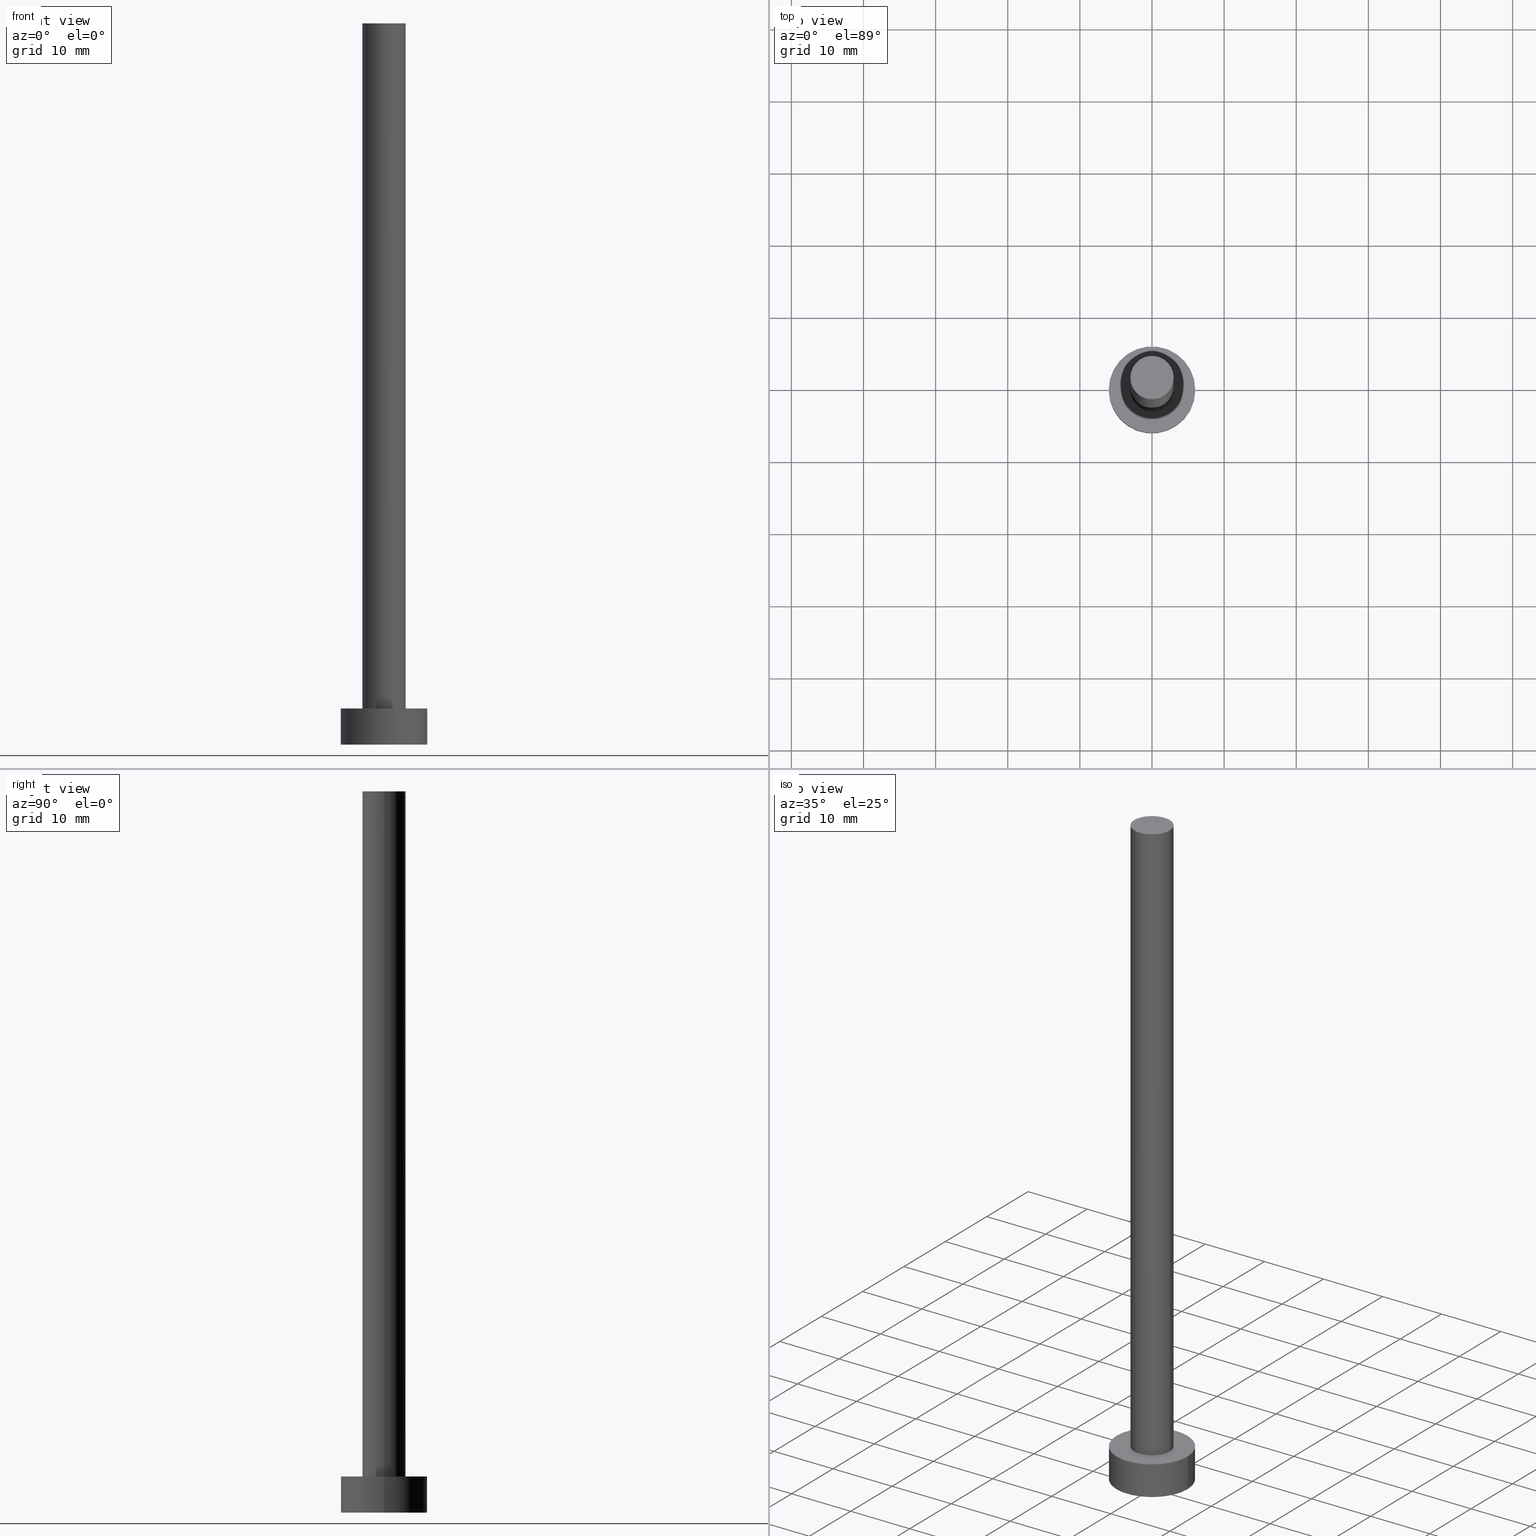
[diagram: canonical four-view strip — front | top / right | iso, engineering-drawing reading convention]
A machine part, canonical four-view strip (front | top / right | iso — engineering-drawing reading convention). The complete STEP part file that produces these views, byte-faithful:
ISO-10303-21;
HEADER;
FILE_DESCRIPTION (( 'STEP AP203' ),
    '1' );
FILE_NAME ('e6b4.STEP',
    '2023-02-12T11:41:01',
    ( '' ),
    ( '' ),
    'SwSTEP 2.0',
    'SolidWorks 2019',
    '' );
FILE_SCHEMA (( 'CONFIG_CONTROL_DESIGN' ));
ENDSEC;

DATA;
#1 = APPLICATION_PROTOCOL_DEFINITION ( 'international standard', 'config_control_design', 1994, #138 ) ;
#2 = DIRECTION ( 'NONE',  ( 0.000000000000000000, 0.000000000000000000, 1.000000000000000000 ) ) ;
#3 = APPLICATION_PROTOCOL_DEFINITION ( 'international standard', 'config_control_design', 1994, #40 ) ;
#4 = DIRECTION ( 'NONE',  ( 1.000000000000000000, 0.000000000000000000, 0.000000000000000000 ) ) ;
#5 = DATE_AND_TIME ( #47, #208 ) ;
#6 = CARTESIAN_POINT ( 'NONE',  ( 0.000000000000000000, 0.000000000000000000, 5.000000000000000000 ) ) ;
#7 = COORDINATED_UNIVERSAL_TIME_OFFSET ( 1, 0, .AHEAD. ) ;
#8 = DIRECTION ( 'NONE',  ( 0.000000000000000000, 0.000000000000000000, 1.000000000000000000 ) ) ;
#9 = APPROVAL_STATUS ( 'not_yet_approved' ) ;
#10 = LOCAL_TIME ( 12, 41, 1.000000000000000000, #201 ) ;
#11 = APPROVAL_ROLE ( '' ) ;
#12 = CARTESIAN_POINT ( 'NONE',  ( 0.000000000000000000, 0.000000000000000000, 0.000000000000000000 ) ) ;
#13 = ORIENTED_EDGE ( 'NONE', *, *, #91, .T. ) ;
#14 = CARTESIAN_POINT ( 'NONE',  ( 0.000000000000000000, 0.000000000000000000, 100.0000000000000000 ) ) ;
#15 = DIRECTION ( 'NONE',  ( -0.000000000000000000, -0.000000000000000000, -1.000000000000000000 ) ) ;
#16 = CARTESIAN_POINT ( 'NONE',  ( 6.000000000000000888, 7.347880794884120722E-16, 5.000000000000000000 ) ) ;
#17 = CC_DESIGN_PERSON_AND_ORGANIZATION_ASSIGNMENT ( #237, #68, ( #45 ) ) ;
#18 = CARTESIAN_POINT ( 'NONE',  ( 3.000000000000000444, 3.673940397442060361E-16, 100.0000000000000000 ) ) ;
#19 = PLANE ( 'NONE',  #28 ) ;
#20 = VERTEX_POINT ( 'NONE', #151 ) ;
#21 = CARTESIAN_POINT ( 'NONE',  ( -3.000000000000000444, 0.000000000000000000, 100.0000000000000000 ) ) ;
#22 = APPROVAL ( #241, 'NEUR�EN�' ) ;
#23 = AXIS2_PLACEMENT_3D ( 'NONE', #214, #90, #235 ) ;
#24 = DATE_AND_TIME ( #167, #110 ) ;
#25 = CIRCLE ( 'NONE', #146, 3.000000000000000444 ) ;
#26 = ADVANCED_FACE ( 'NONE', ( #39 ), #225, .T. ) ;
#27 = FACE_BOUND ( 'NONE', #55, .T. ) ;
#28 = AXIS2_PLACEMENT_3D ( 'NONE', #168, #189, #41 ) ;
#29 = CARTESIAN_POINT ( 'NONE',  ( 0.000000000000000000, 0.000000000000000000, 0.000000000000000000 ) ) ;
#30 = SECURITY_CLASSIFICATION_LEVEL ( 'unclassified' ) ;
#31 = DATE_AND_TIME ( #131, #216 ) ;
#32 = FACE_OUTER_BOUND ( 'NONE', #83, .T. ) ;
#33 = VERTEX_POINT ( 'NONE', #35 ) ;
#34 = DIRECTION ( 'NONE',  ( -1.000000000000000000, 0.000000000000000000, 0.000000000000000000 ) ) ;
#35 = CARTESIAN_POINT ( 'NONE',  ( 6.000000000000000888, 7.347880794884120722E-16, 5.000000000000000000 ) ) ;
#36 = CARTESIAN_POINT ( 'NONE',  ( 6.000000000000000888, 7.347880794884120722E-16, 0.000000000000000000 ) ) ;
#37 = VERTEX_POINT ( 'NONE', #18 ) ;
#38 =( LENGTH_UNIT ( ) NAMED_UNIT ( * ) SI_UNIT ( .MILLI., .METRE. ) );
#39 = FACE_OUTER_BOUND ( 'NONE', #119, .T. ) ;
#40 = APPLICATION_CONTEXT ( 'configuration controlled 3d designs of mechanical parts and assemblies' ) ;
#41 = DIRECTION ( 'NONE',  ( 1.000000000000000000, 0.000000000000000000, -0.000000000000000000 ) ) ;
#42 = EDGE_CURVE ( 'NONE', #122, #113, #100, .T. ) ;
#43 = CIRCLE ( 'NONE', #179, 3.000000000000000444 ) ;
#44 = EDGE_CURVE ( 'NONE', #188, #33, #125, .T. ) ;
#45 = PRODUCT_DEFINITION_FORMATION_WITH_SPECIFIED_SOURCE ( 'LIBOVOLN�', '', #121, .NOT_KNOWN. ) ;
#46 = DIRECTION ( 'NONE',  ( -1.000000000000000000, 0.000000000000000000, 0.000000000000000000 ) ) ;
#47 = CALENDAR_DATE ( 2023, 12, 2 ) ;
#48 = AXIS2_PLACEMENT_3D ( 'NONE', #62, #2, #88 ) ;
#49 = COORDINATED_UNIVERSAL_TIME_OFFSET ( 1, 0, .AHEAD. ) ;
#50 = AXIS2_PLACEMENT_3D ( 'NONE', #29, #163, #240 ) ;
#51 = DATE_AND_TIME ( #218, #194 ) ;
#52 = DIRECTION ( 'NONE',  ( 1.000000000000000000, 0.000000000000000000, 0.000000000000000000 ) ) ;
#53 = CARTESIAN_POINT ( 'NONE',  ( 0.000000000000000000, 0.000000000000000000, 5.000000000000000000 ) ) ;
#54 = CC_DESIGN_PERSON_AND_ORGANIZATION_ASSIGNMENT ( #239, #164, ( #82 ) ) ;
#55 = EDGE_LOOP ( 'NONE', ( #60, #158 ) ) ;
#56 = DIRECTION ( 'NONE',  ( -1.000000000000000000, 0.000000000000000000, 0.000000000000000000 ) ) ;
#57 = ORIENTED_EDGE ( 'NONE', *, *, #44, .F. ) ;
#58 = LINE ( 'NONE', #246, #169 ) ;
#59 = EDGE_CURVE ( 'NONE', #20, #113, #242, .T. ) ;
#60 = ORIENTED_EDGE ( 'NONE', *, *, #233, .F. ) ;
#61 = ORIENTED_EDGE ( 'NONE', *, *, #124, .F. ) ;
#62 = CARTESIAN_POINT ( 'NONE',  ( 0.000000000000000000, 0.000000000000000000, 0.000000000000000000 ) ) ;
#63 = PRODUCT_DEFINITION ( 'NEZN�M�', '', #45, #175 ) ;
#64 = PERSON_AND_ORGANIZATION ( #133, #252 ) ;
#65 = FACE_OUTER_BOUND ( 'NONE', #136, .T. ) ;
#66 = APPROVAL_ROLE ( '' ) ;
#67 = APPROVAL ( #9, 'NEUR�EN�' ) ;
#68 = PERSON_AND_ORGANIZATION_ROLE ( 'creator' ) ;
#69 = DIRECTION ( 'NONE',  ( 0.000000000000000000, 0.000000000000000000, 1.000000000000000000 ) ) ;
#70 = DIRECTION ( 'NONE',  ( -0.000000000000000000, -0.000000000000000000, -1.000000000000000000 ) ) ;
#71 = CLOSED_SHELL ( 'NONE', ( #145, #244, #26, #87, #186, #75, #166 ) ) ;
#72 = LINE ( 'NONE', #200, #152 ) ;
#73 = UNCERTAINTY_MEASURE_WITH_UNIT (LENGTH_MEASURE( 1.000000000000000082E-05 ), #38, 'distance_accuracy_value', 'NONE');
#74 = PLANE ( 'NONE',  #116 ) ;
#75 = ADVANCED_FACE ( 'NONE', ( #65 ), #127, .T. ) ;
#76 = ORIENTED_EDGE ( 'NONE', *, *, #197, .F. ) ;
#77 = MANIFOLD_SOLID_BREP ( 'P�idat vysunut�m3', #71 ) ;
#78 = ORIENTED_EDGE ( 'NONE', *, *, #126, .T. ) ;
#79 = DIRECTION ( 'NONE',  ( 0.000000000000000000, 0.000000000000000000, 1.000000000000000000 ) ) ;
#80 = CARTESIAN_POINT ( 'NONE',  ( 0.000000000000000000, 0.000000000000000000, 5.000000000000000000 ) ) ;
#81 = EDGE_CURVE ( 'NONE', #33, #188, #215, .T. ) ;
#82 = SECURITY_CLASSIFICATION ( '', '', #30 ) ;
#83 = EDGE_LOOP ( 'NONE', ( #137, #210 ) ) ;
#84 = EDGE_LOOP ( 'NONE', ( #61, #140, #103, #190 ) ) ;
#85 = CC_DESIGN_APPROVAL ( #22, ( #82 ) ) ;
#86 = DIRECTION ( 'NONE',  ( 0.000000000000000000, 0.000000000000000000, 1.000000000000000000 ) ) ;
#87 = ADVANCED_FACE ( 'NONE', ( #27, #178 ), #132, .T. ) ;
#88 = DIRECTION ( 'NONE',  ( 1.000000000000000000, 0.000000000000000000, 0.000000000000000000 ) ) ;
#89 = APPROVAL_DATE_TIME ( #24, #22 ) ;
#90 = DIRECTION ( 'NONE',  ( 0.000000000000000000, 0.000000000000000000, 1.000000000000000000 ) ) ;
#91 = EDGE_CURVE ( 'NONE', #188, #118, #72, .T. ) ;
#92 = PERSON_AND_ORGANIZATION_ROLE ( 'creator' ) ;
#93 = CARTESIAN_POINT ( 'NONE',  ( 0.000000000000000000, 0.000000000000000000, 100.0000000000000000 ) ) ;
#94 = DIRECTION ( 'NONE',  ( 0.000000000000000000, 0.000000000000000000, 1.000000000000000000 ) ) ;
#95 = COORDINATED_UNIVERSAL_TIME_OFFSET ( 1, 0, .AHEAD. ) ;
#96 = VECTOR ( 'NONE', #102, 1000.000000000000000 ) ;
#97 = DIRECTION ( 'NONE',  ( 0.000000000000000000, 0.000000000000000000, 1.000000000000000000 ) ) ;
#98 = ORIENTED_EDGE ( 'NONE', *, *, #108, .T. ) ;
#99 = CIRCLE ( 'NONE', #232, 6.000000000000000888 ) ;
#100 = LINE ( 'NONE', #171, #96 ) ;
#101 = EDGE_CURVE ( 'NONE', #172, #118, #99, .T. ) ;
#102 = DIRECTION ( 'NONE',  ( -0.000000000000000000, -0.000000000000000000, -1.000000000000000000 ) ) ;
#103 = ORIENTED_EDGE ( 'NONE', *, *, #59, .T. ) ;
#104 = EDGE_CURVE ( 'NONE', #122, #37, #43, .T. ) ;
#105 = AXIS2_PLACEMENT_3D ( 'NONE', #53, #15, #206 ) ;
#106 = DIRECTION ( 'NONE',  ( -0.000000000000000000, -0.000000000000000000, -1.000000000000000000 ) ) ;
#107 = PERSON_AND_ORGANIZATION ( #133, #252 ) ;
#108 = EDGE_CURVE ( 'NONE', #118, #172, #159, .T. ) ;
#109 = DATE_TIME_ROLE ( 'classification_date' ) ;
#110 = LOCAL_TIME ( 12, 41, 1.000000000000000000, #95 ) ;
#111 = CC_DESIGN_PERSON_AND_ORGANIZATION_ASSIGNMENT ( #107, #92, ( #63 ) ) ;
#112 = DIRECTION ( 'NONE',  ( 0.000000000000000000, 0.000000000000000000, 1.000000000000000000 ) ) ;
#113 = VERTEX_POINT ( 'NONE', #147 ) ;
#114 = DIRECTION ( 'NONE',  ( 1.000000000000000000, 0.000000000000000000, -0.000000000000000000 ) ) ;
#115 = ORIENTED_EDGE ( 'NONE', *, *, #101, .T. ) ;
#116 = AXIS2_PLACEMENT_3D ( 'NONE', #247, #97, #114 ) ;
#117 = FACE_OUTER_BOUND ( 'NONE', #185, .T. ) ;
#118 = VERTEX_POINT ( 'NONE', #221 ) ;
#119 = EDGE_LOOP ( 'NONE', ( #211, #57, #13, #98 ) ) ;
#120 = LINE ( 'NONE', #16, #155 ) ;
#121 = PRODUCT ( 'e6b4', 'e6b4', '', ( #143 ) ) ;
#122 = VERTEX_POINT ( 'NONE', #21 ) ;
#123 = AXIS2_PLACEMENT_3D ( 'NONE', #135, #226, #56 ) ;
#124 = EDGE_CURVE ( 'NONE', #37, #122, #25, .T. ) ;
#125 = CIRCLE ( 'NONE', #219, 6.000000000000000888 ) ;
#126 = EDGE_CURVE ( 'NONE', #33, #172, #120, .T. ) ;
#127 = CYLINDRICAL_SURFACE ( 'NONE', #202, 3.000000000000000444 ) ;
#128 = CALENDAR_DATE ( 2023, 12, 2 ) ;
#129 = CIRCLE ( 'NONE', #165, 3.000000000000000444 ) ;
#130 = APPROVAL_DATE_TIME ( #5, #191 ) ;
#131 = CALENDAR_DATE ( 2023, 12, 2 ) ;
#132 = PLANE ( 'NONE',  #255 ) ;
#133 = PERSON ( 'NEUR�EN�', 'NEUR�EN�', 'NEUR�EN�', ('NEUR�EN�'), ('NEUR�EN�'), ('NEUR�EN�') ) ;
#134 = CARTESIAN_POINT ( 'NONE',  ( 0.000000000000000000, 0.000000000000000000, 100.0000000000000000 ) ) ;
#135 = CARTESIAN_POINT ( 'NONE',  ( 0.000000000000000000, 0.000000000000000000, 5.000000000000000000 ) ) ;
#136 = EDGE_LOOP ( 'NONE', ( #76, #230, #139, #170 ) ) ;
#137 = ORIENTED_EDGE ( 'NONE', *, *, #104, .T. ) ;
#138 = APPLICATION_CONTEXT ( 'configuration controlled 3d designs of mechanical parts and assemblies' ) ;
#139 = ORIENTED_EDGE ( 'NONE', *, *, #42, .T. ) ;
#140 = ORIENTED_EDGE ( 'NONE', *, *, #197, .T. ) ;
#141 = EDGE_LOOP ( 'NONE', ( #253, #78, #115, #173 ) ) ;
#142 = CC_DESIGN_PERSON_AND_ORGANIZATION_ASSIGNMENT ( #199, #162, ( #45 ) ) ;
#143 = MECHANICAL_CONTEXT ( 'NONE', #138, 'mechanical' ) ;
#144 = DIRECTION ( 'NONE',  ( 1.000000000000000000, 0.000000000000000000, 0.000000000000000000 ) ) ;
#145 = ADVANCED_FACE ( 'NONE', ( #207 ), #150, .T. ) ;
#146 = AXIS2_PLACEMENT_3D ( 'NONE', #14, #112, #187 ) ;
#147 = CARTESIAN_POINT ( 'NONE',  ( -3.000000000000000444, 0.000000000000000000, 5.000000000000000000 ) ) ;
#148 = CC_DESIGN_DATE_AND_TIME_ASSIGNMENT ( #31, #109, ( #82 ) ) ;
#149 = DIRECTION ( 'NONE',  ( -0.000000000000000000, -0.000000000000000000, -1.000000000000000000 ) ) ;
#150 = CYLINDRICAL_SURFACE ( 'NONE', #205, 3.000000000000000444 ) ;
#151 = CARTESIAN_POINT ( 'NONE',  ( 3.000000000000000444, 3.673940397442060361E-16, 5.000000000000000000 ) ) ;
#152 = VECTOR ( 'NONE', #70, 1000.000000000000000 ) ;
#153 = ORIENTED_EDGE ( 'NONE', *, *, #101, .F. ) ;
#154 = CYLINDRICAL_SURFACE ( 'NONE', #123, 6.000000000000000888 ) ;
#155 = VECTOR ( 'NONE', #149, 1000.000000000000000 ) ;
#156 = FACE_OUTER_BOUND ( 'NONE', #141, .T. ) ;
#157 =( NAMED_UNIT ( * ) SI_UNIT ( $, .STERADIAN. ) SOLID_ANGLE_UNIT ( ) );
#158 = ORIENTED_EDGE ( 'NONE', *, *, #59, .F. ) ;
#159 = CIRCLE ( 'NONE', #50, 6.000000000000000888 ) ;
#160 = DATE_TIME_ROLE ( 'creation_date' ) ;
#161 = DIRECTION ( 'NONE',  ( 1.000000000000000000, 0.000000000000000000, 0.000000000000000000 ) ) ;
#162 = PERSON_AND_ORGANIZATION_ROLE ( 'design_supplier' ) ;
#163 = DIRECTION ( 'NONE',  ( 0.000000000000000000, 0.000000000000000000, 1.000000000000000000 ) ) ;
#164 = PERSON_AND_ORGANIZATION_ROLE ( 'classification_officer' ) ;
#165 = AXIS2_PLACEMENT_3D ( 'NONE', #192, #79, #52 ) ;
#166 = ADVANCED_FACE ( 'NONE', ( #32 ), #74, .T. ) ;
#167 = CALENDAR_DATE ( 2023, 12, 2 ) ;
#168 = CARTESIAN_POINT ( 'NONE',  ( 0.000000000000000000, 0.000000000000000000, 0.000000000000000000 ) ) ;
#169 = VECTOR ( 'NONE', #251, 1000.000000000000000 ) ;
#170 = ORIENTED_EDGE ( 'NONE', *, *, #233, .T. ) ;
#171 = CARTESIAN_POINT ( 'NONE',  ( -3.000000000000000444, 0.000000000000000000, 100.0000000000000000 ) ) ;
#172 = VERTEX_POINT ( 'NONE', #36 ) ;
#173 = ORIENTED_EDGE ( 'NONE', *, *, #91, .F. ) ;
#174 = CC_DESIGN_SECURITY_CLASSIFICATION ( #82, ( #45 ) ) ;
#175 = DESIGN_CONTEXT ( 'detailed design', #40, 'design' ) ;
#176 = APPROVAL_DATE_TIME ( #51, #67 ) ;
#177 = APPROVAL_ROLE ( '' ) ;
#178 = FACE_OUTER_BOUND ( 'NONE', #249, .T. ) ;
#179 = AXIS2_PLACEMENT_3D ( 'NONE', #238, #69, #144 ) ;
#180 = PERSON_AND_ORGANIZATION ( #133, #252 ) ;
#181 = APPROVAL_PERSON_ORGANIZATION ( #236, #67, #66 ) ;
#182 = CARTESIAN_POINT ( 'NONE',  ( 0.000000000000000000, 0.000000000000000000, 5.000000000000000000 ) ) ;
#183 = DIRECTION ( 'NONE',  ( 1.000000000000000000, 0.000000000000000000, -0.000000000000000000 ) ) ;
#184 = DIRECTION ( 'NONE',  ( -0.000000000000000000, -0.000000000000000000, -1.000000000000000000 ) ) ;
#185 = EDGE_LOOP ( 'NONE', ( #193, #153 ) ) ;
#186 = ADVANCED_FACE ( 'NONE', ( #117 ), #19, .F. ) ;
#187 = DIRECTION ( 'NONE',  ( 1.000000000000000000, 0.000000000000000000, 0.000000000000000000 ) ) ;
#188 = VERTEX_POINT ( 'NONE', #248 ) ;
#189 = DIRECTION ( 'NONE',  ( 0.000000000000000000, 0.000000000000000000, 1.000000000000000000 ) ) ;
#190 = ORIENTED_EDGE ( 'NONE', *, *, #42, .F. ) ;
#191 = APPROVAL ( #217, 'NEUR�EN�' ) ;
#192 = CARTESIAN_POINT ( 'NONE',  ( 0.000000000000000000, 0.000000000000000000, 5.000000000000000000 ) ) ;
#193 = ORIENTED_EDGE ( 'NONE', *, *, #108, .F. ) ;
#194 = LOCAL_TIME ( 12, 41, 1.000000000000000000, #7 ) ;
#195 =( GEOMETRIC_REPRESENTATION_CONTEXT ( 3 ) GLOBAL_UNCERTAINTY_ASSIGNED_CONTEXT ( ( #73 ) ) GLOBAL_UNIT_ASSIGNED_CONTEXT ( ( #38, #212, #157 ) ) REPRESENTATION_CONTEXT ( 'NONE', 'WORKASPACE' ) );
#196 = PERSON_AND_ORGANIZATION_ROLE ( 'design_owner' ) ;
#197 = EDGE_CURVE ( 'NONE', #37, #20, #58, .T. ) ;
#198 = PRODUCT_DEFINITION_SHAPE ( 'NONE', 'NONE',  #63 ) ;
#199 = PERSON_AND_ORGANIZATION ( #133, #252 ) ;
#200 = CARTESIAN_POINT ( 'NONE',  ( -6.000000000000000888, 0.000000000000000000, 5.000000000000000000 ) ) ;
#201 = COORDINATED_UNIVERSAL_TIME_OFFSET ( 1, 0, .AHEAD. ) ;
#202 = AXIS2_PLACEMENT_3D ( 'NONE', #93, #106, #46 ) ;
#203 = COORDINATED_UNIVERSAL_TIME_OFFSET ( 1, 0, .AHEAD. ) ;
#204 = DATE_AND_TIME ( #128, #10 ) ;
#205 = AXIS2_PLACEMENT_3D ( 'NONE', #134, #184, #34 ) ;
#206 = DIRECTION ( 'NONE',  ( -1.000000000000000000, 0.000000000000000000, 0.000000000000000000 ) ) ;
#207 = FACE_OUTER_BOUND ( 'NONE', #84, .T. ) ;
#208 = LOCAL_TIME ( 12, 41, 1.000000000000000000, #49 ) ;
#209 = ORIENTED_EDGE ( 'NONE', *, *, #44, .T. ) ;
#210 = ORIENTED_EDGE ( 'NONE', *, *, #124, .T. ) ;
#211 = ORIENTED_EDGE ( 'NONE', *, *, #126, .F. ) ;
#212 =( NAMED_UNIT ( * ) PLANE_ANGLE_UNIT ( ) SI_UNIT ( $, .RADIAN. ) );
#213 = APPROVAL_PERSON_ORGANIZATION ( #234, #191, #177 ) ;
#214 = CARTESIAN_POINT ( 'NONE',  ( 0.000000000000000000, 0.000000000000000000, 5.000000000000000000 ) ) ;
#215 = CIRCLE ( 'NONE', #223, 6.000000000000000888 ) ;
#216 = LOCAL_TIME ( 12, 41, 1.000000000000000000, #203 ) ;
#217 = APPROVAL_STATUS ( 'not_yet_approved' ) ;
#218 = CALENDAR_DATE ( 2023, 12, 2 ) ;
#219 = AXIS2_PLACEMENT_3D ( 'NONE', #80, #86, #4 ) ;
#220 = DIRECTION ( 'NONE',  ( 1.000000000000000000, 0.000000000000000000, 0.000000000000000000 ) ) ;
#221 = CARTESIAN_POINT ( 'NONE',  ( -6.000000000000000888, 0.000000000000000000, 0.000000000000000000 ) ) ;
#222 = PRODUCT_RELATED_PRODUCT_CATEGORY ( 'detail', '', ( #121 ) ) ;
#223 = AXIS2_PLACEMENT_3D ( 'NONE', #182, #243, #220 ) ;
#224 = CC_DESIGN_DATE_AND_TIME_ASSIGNMENT ( #204, #160, ( #63 ) ) ;
#225 = CYLINDRICAL_SURFACE ( 'NONE', #105, 6.000000000000000888 ) ;
#226 = DIRECTION ( 'NONE',  ( -0.000000000000000000, -0.000000000000000000, -1.000000000000000000 ) ) ;
#227 = CC_DESIGN_APPROVAL ( #191, ( #63 ) ) ;
#228 = ORIENTED_EDGE ( 'NONE', *, *, #81, .T. ) ;
#229 = ADVANCED_BREP_SHAPE_REPRESENTATION ( 'e6b4', ( #77, #48 ), #195 ) ;
#230 = ORIENTED_EDGE ( 'NONE', *, *, #104, .F. ) ;
#231 = CC_DESIGN_APPROVAL ( #67, ( #45 ) ) ;
#232 = AXIS2_PLACEMENT_3D ( 'NONE', #12, #94, #161 ) ;
#233 = EDGE_CURVE ( 'NONE', #113, #20, #129, .T. ) ;
#234 = PERSON_AND_ORGANIZATION ( #133, #252 ) ;
#235 = DIRECTION ( 'NONE',  ( 1.000000000000000000, 0.000000000000000000, 0.000000000000000000 ) ) ;
#236 = PERSON_AND_ORGANIZATION ( #133, #252 ) ;
#237 = PERSON_AND_ORGANIZATION ( #133, #252 ) ;
#238 = CARTESIAN_POINT ( 'NONE',  ( 0.000000000000000000, 0.000000000000000000, 100.0000000000000000 ) ) ;
#239 = PERSON_AND_ORGANIZATION ( #133, #252 ) ;
#240 = DIRECTION ( 'NONE',  ( 1.000000000000000000, 0.000000000000000000, 0.000000000000000000 ) ) ;
#241 = APPROVAL_STATUS ( 'not_yet_approved' ) ;
#242 = CIRCLE ( 'NONE', #23, 3.000000000000000444 ) ;
#243 = DIRECTION ( 'NONE',  ( 0.000000000000000000, 0.000000000000000000, 1.000000000000000000 ) ) ;
#244 = ADVANCED_FACE ( 'NONE', ( #156 ), #154, .T. ) ;
#245 = APPROVAL_PERSON_ORGANIZATION ( #180, #22, #11 ) ;
#246 = CARTESIAN_POINT ( 'NONE',  ( 3.000000000000000444, 3.673940397442060361E-16, 100.0000000000000000 ) ) ;
#247 = CARTESIAN_POINT ( 'NONE',  ( 0.000000000000000000, 0.000000000000000000, 100.0000000000000000 ) ) ;
#248 = CARTESIAN_POINT ( 'NONE',  ( -6.000000000000000888, 0.000000000000000000, 5.000000000000000000 ) ) ;
#249 = EDGE_LOOP ( 'NONE', ( #209, #228 ) ) ;
#250 = CC_DESIGN_PERSON_AND_ORGANIZATION_ASSIGNMENT ( #64, #196, ( #121 ) ) ;
#251 = DIRECTION ( 'NONE',  ( -0.000000000000000000, -0.000000000000000000, -1.000000000000000000 ) ) ;
#252 = ORGANIZATION ( 'NEUR�EN�', 'NEUR�EN�', '' ) ;
#253 = ORIENTED_EDGE ( 'NONE', *, *, #81, .F. ) ;
#254 = SHAPE_DEFINITION_REPRESENTATION ( #198, #229 ) ;
#255 = AXIS2_PLACEMENT_3D ( 'NONE', #6, #8, #183 ) ;
ENDSEC;
END-ISO-10303-21;
